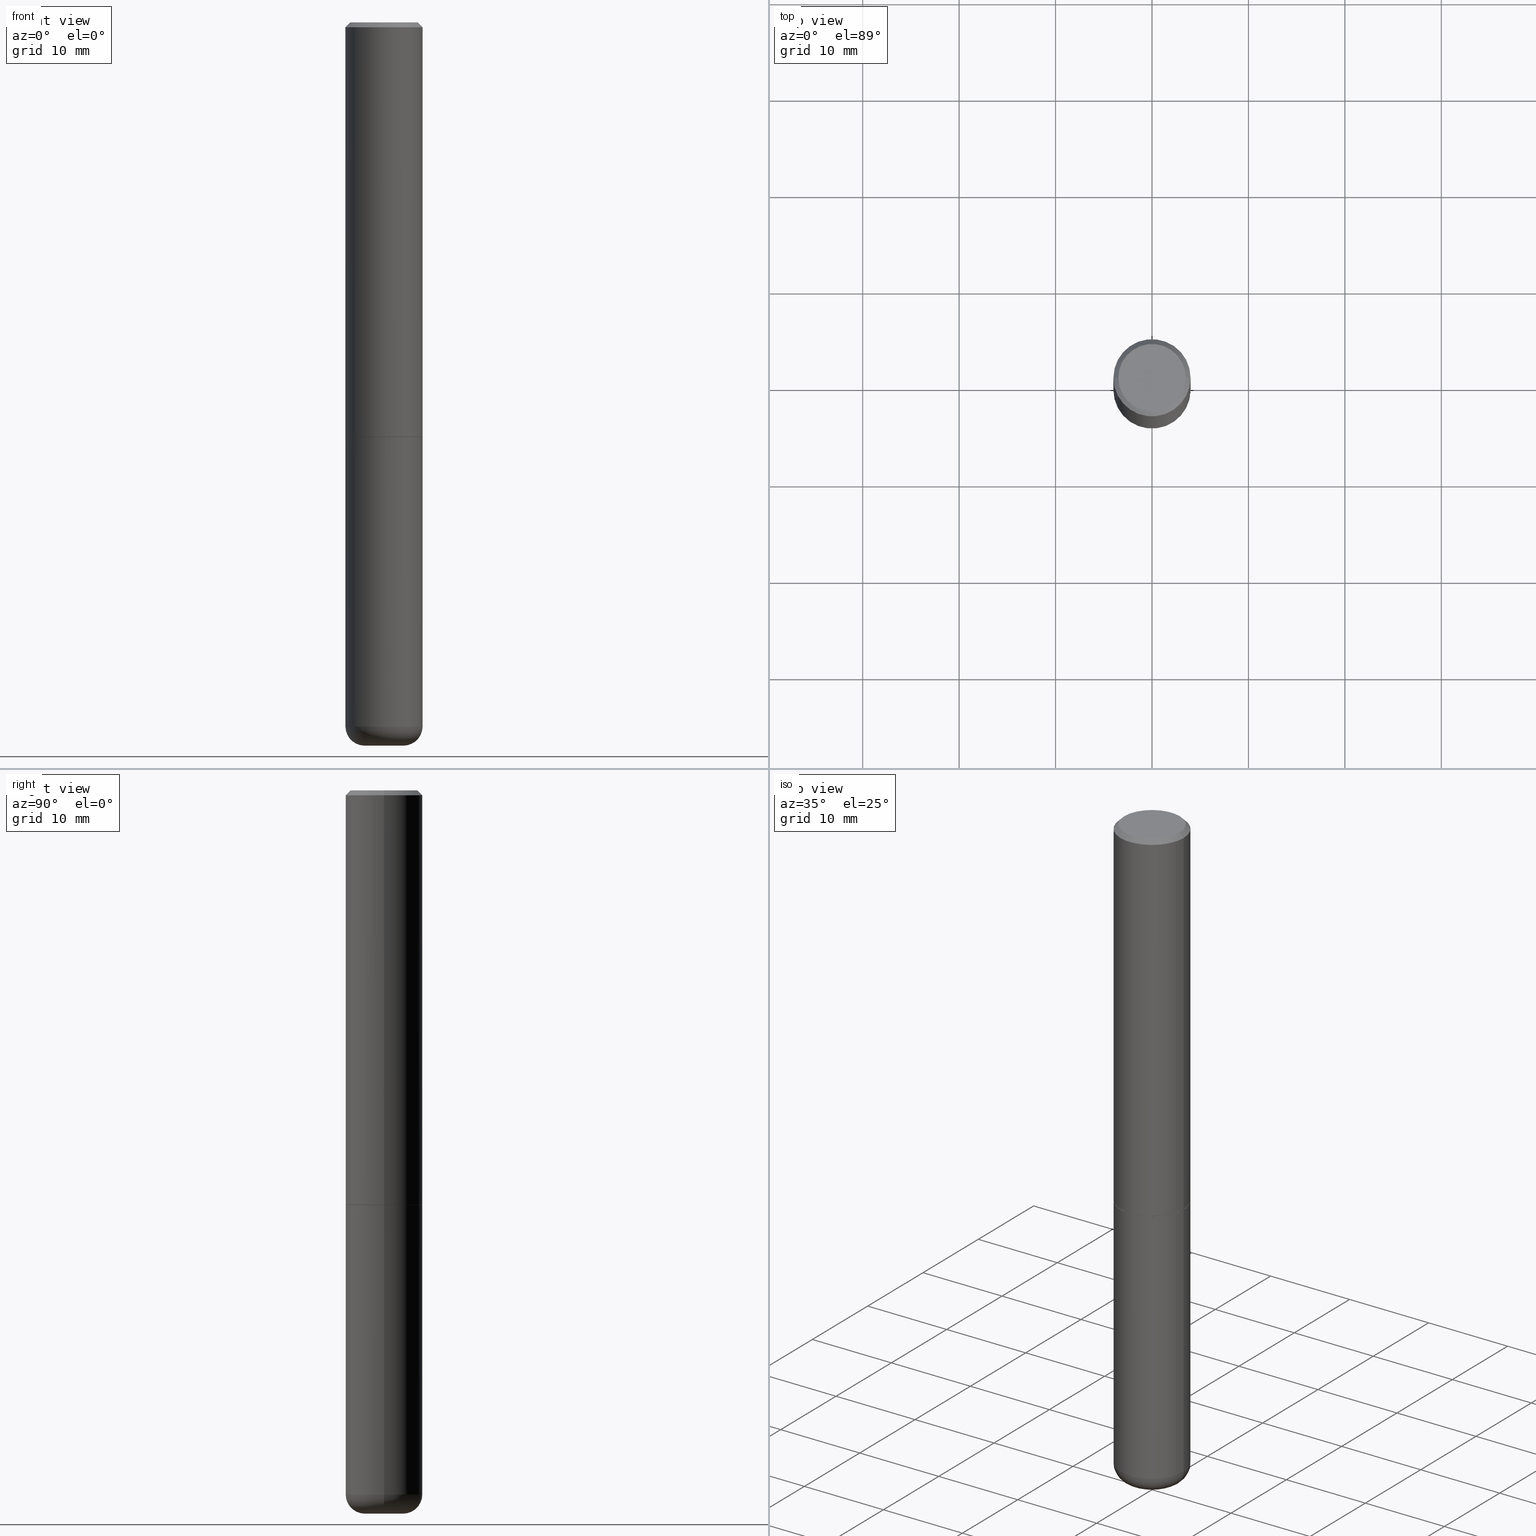
[diagram: canonical four-view strip — front | top / right | iso, engineering-drawing reading convention]
A machine part, canonical four-view strip (front | top / right | iso — engineering-drawing reading convention). The complete STEP part file that produces these views, byte-faithful:
ISO-10303-21;
HEADER;
FILE_DESCRIPTION (( 'STEP AP203' ),
    '1' );
FILE_NAME ('44853.STEP',
    '2024-03-04T10:37:59',
    ( '' ),
    ( '' ),
    'SwSTEP 2.0',
    'SolidWorks 2023',
    '' );
FILE_SCHEMA (( 'CONFIG_CONTROL_DESIGN' ));
ENDSEC;

DATA;
#1 = FACE_OUTER_BOUND ( 'NONE', #197, .T. ) ;
#2 = ORIENTED_EDGE ( 'NONE', *, *, #159, .T. ) ;
#3 = EDGE_CURVE ( 'NONE', #282, #162, #89, .T. ) ;
#4 = PERSON_AND_ORGANIZATION ( #180, #80 ) ;
#5 = AXIS2_PLACEMENT_3D ( 'NONE', #192, #250, #144 ) ;
#6 =( GEOMETRIC_REPRESENTATION_CONTEXT ( 3 ) GLOBAL_UNCERTAINTY_ASSIGNED_CONTEXT ( ( #248 ) ) GLOBAL_UNIT_ASSIGNED_CONTEXT ( ( #44, #297, #141 ) ) REPRESENTATION_CONTEXT ( 'NONE', 'WORKASPACE' ) );
#7 = LINE ( 'NONE', #111, #352 ) ;
#8 = ORIENTED_EDGE ( 'NONE', *, *, #337, .T. ) ;
#9 = FACE_OUTER_BOUND ( 'NONE', #244, .T. ) ;
#10 = DIRECTION ( 'NONE',  ( 1.000000000000000000, -6.982962677686267499E-15, 0.000000000000000000 ) ) ;
#11 = CARTESIAN_POINT ( 'NONE',  ( 4.140178688871434900E-29, -5.911077906661444587E-15, -1.692999999999999616 ) ) ;
#12 = EDGE_CURVE ( 'NONE', #384, #380, #241, .T. ) ;
#13 = AXIS2_PLACEMENT_3D ( 'NONE', #98, #261, #59 ) ;
#14 = PLANE ( 'NONE',  #71 ) ;
#15 = EDGE_LOOP ( 'NONE', ( #31, #393, #85, #16 ) ) ;
#16 = ORIENTED_EDGE ( 'NONE', *, *, #243, .F. ) ;
#17 = CARTESIAN_POINT ( 'NONE',  ( 4.890937612370281041E-31, -6.982962677686302702E-17, -0.02000000000000003511 ) ) ;
#18 = ADVANCED_FACE ( 'NONE', ( #413 ), #93, .T. ) ;
#19 = CALENDAR_DATE ( 2024, 4, 3 ) ;
#20 = DIRECTION ( 'NONE',  ( 1.000000000000000000, -6.982962677686267499E-15, 4.874794762600759889E-29 ) ) ;
#21 = DIRECTION ( 'NONE',  ( -2.445468806185136597E-29, 3.491481338843145583E-15, 1.000000000000000000 ) ) ;
#22 = ORIENTED_EDGE ( 'NONE', *, *, #181, .F. ) ;
#23 = COORDINATED_UNIVERSAL_TIME_OFFSET ( 5, 0, .BEHIND. ) ;
#24 = DESIGN_CONTEXT ( 'detailed design', #183, 'design' ) ;
#25 = CARTESIAN_POINT ( 'NONE',  ( 7.028521895856700897E-29, -1.003486651596908519E-14, -2.874099999999999877 ) ) ;
#26 = VERTEX_POINT ( 'NONE', #196 ) ;
#27 = DIRECTION ( 'NONE',  ( 1.000000000000000000, -6.982962677686261977E-15, 0.000000000000000000 ) ) ;
#28 = AXIS2_PLACEMENT_3D ( 'NONE', #238, #114, #121 ) ;
#29 = APPROVAL_PERSON_ORGANIZATION ( #4, #316, #32 ) ;
#30 = CARTESIAN_POINT ( 'NONE',  ( -0.1565000000000000002, -4.793780070848664800E-15, -1.692999999999999616 ) ) ;
#31 = ORIENTED_EDGE ( 'NONE', *, *, #131, .F. ) ;
#32 = APPROVAL_ROLE ( '' ) ;
#33 = CARTESIAN_POINT ( 'NONE',  ( 0.1575000000000000844, -1.099816621735587677E-15, 7.679978421878603638E-30 ) ) ;
#34 = ORIENTED_EDGE ( 'NONE', *, *, #264, .T. ) ;
#35 = AXIS2_PLACEMENT_3D ( 'NONE', #301, #396, #75 ) ;
#36 = PRODUCT ( '44853', '44853', '', ( #105 ) ) ;
#37 = PRODUCT_DEFINITION ( 'UNKNOWN', '', #72, #24 ) ;
#38 = CARTESIAN_POINT ( 'NONE',  ( 4.890937612370281041E-31, -6.982962677686302702E-17, -0.02000000000000003511 ) ) ;
#39 = CARTESIAN_POINT ( 'NONE',  ( -0.07880000000000000893, -9.332750064352005228E-15, -2.952799999999999869 ) ) ;
#40 = CIRCLE ( 'NONE', #247, 0.1575000000000000289 ) ;
#41 = CARTESIAN_POINT ( 'NONE',  ( 0.1565000000000000002, -7.003911565719345264E-15, -1.692999999999999616 ) ) ;
#42 = CARTESIAN_POINT ( 'NONE',  ( 4.137733220065250418E-29, -5.907586425322600791E-15, -1.691999999999999504 ) ) ;
#43 = ADVANCED_FACE ( 'NONE', ( #1 ), #83, .T. ) ;
#44 =( CONVERSION_BASED_UNIT ( 'INCH', #209 ) LENGTH_UNIT ( ) NAMED_UNIT ( #73 ) );
#45 = CC_DESIGN_PERSON_AND_ORGANIZATION_ASSIGNMENT ( #195, #186, ( #72 ) ) ;
#46 = AXIS2_PLACEMENT_3D ( 'NONE', #388, #367, #275 ) ;
#47 = CC_DESIGN_PERSON_AND_ORGANIZATION_ASSIGNMENT ( #284, #129, ( #36 ) ) ;
#48 = EDGE_LOOP ( 'NONE', ( #128, #91 ) ) ;
#49 = VECTOR ( 'NONE', #113, 39.37007874015748143 ) ;
#50 = LOCAL_TIME ( 5, 37, 59.00000000000000000, #166 ) ;
#51 = APPROVAL_STATUS ( 'not_yet_approved' ) ;
#52 = DIRECTION ( 'NONE',  ( 1.000000000000000000, -6.982962677686265922E-15, 0.000000000000000000 ) ) ;
#53 = EDGE_LOOP ( 'NONE', ( #153, #346, #167, #324 ) ) ;
#54 = FACE_OUTER_BOUND ( 'NONE', #322, .T. ) ;
#55 = CARTESIAN_POINT ( 'NONE',  ( 4.890937612370281041E-31, -6.982962677686302702E-17, -0.02000000000000003511 ) ) ;
#56 = ORIENTED_EDGE ( 'NONE', *, *, #302, .T. ) ;
#57 = CYLINDRICAL_SURFACE ( 'NONE', #149, 0.1575000000000000844 ) ;
#58 = PLANE ( 'NONE',  #334 ) ;
#59 = DIRECTION ( 'NONE',  ( 1.000000000000000000, -6.982962677686263555E-15, 4.883557194083111780E-29 ) ) ;
#60 = CONICAL_SURFACE ( 'NONE', #397, 0.1565000000000000002, 0.7853981633975165577 ) ;
#61 = CARTESIAN_POINT ( 'NONE',  ( 7.220980290903470182E-29, -1.030964609733603853E-14, -2.952799999999999869 ) ) ;
#62 = ORIENTED_EDGE ( 'NONE', *, *, #78, .T. ) ;
#63 = DIRECTION ( 'NONE',  ( -2.445468806185136597E-29, 3.491481338843145583E-15, 1.000000000000000000 ) ) ;
#64 = CARTESIAN_POINT ( 'NONE',  ( 4.140178688871434900E-29, -5.911077906661444587E-15, -1.692999999999999616 ) ) ;
#65 = PERSON_AND_ORGANIZATION ( #180, #80 ) ;
#66 = DIRECTION ( 'NONE',  ( 2.438088387897960049E-29, -3.491481338843145188E-15, -1.000000000000000000 ) ) ;
#67 = VERTEX_POINT ( 'NONE', #136 ) ;
#68 = DIRECTION ( 'NONE',  ( -2.445468806185136877E-29, 3.491481338843145188E-15, 1.000000000000000000 ) ) ;
#69 = CARTESIAN_POINT ( 'NONE',  ( 0.000000000000000000, 0.000000000000000000, 0.000000000000000000 ) ) ;
#70 = EDGE_CURVE ( 'NONE', #162, #152, #349, .T. ) ;
#71 = AXIS2_PLACEMENT_3D ( 'NONE', #109, #392, #148 ) ;
#72 = PRODUCT_DEFINITION_FORMATION_WITH_SPECIFIED_SOURCE ( 'ANY', '', #36, .NOT_KNOWN. ) ;
#73 = DIMENSIONAL_EXPONENTS ( 1.000000000000000000, 0.000000000000000000, 0.000000000000000000, 0.000000000000000000, 0.000000000000000000, 0.000000000000000000, 0.000000000000000000 ) ;
#74 = ORIENTED_EDGE ( 'NONE', *, *, #181, .T. ) ;
#75 = DIRECTION ( 'NONE',  ( 1.000000000000000000, -6.982962677686267499E-15, 4.874794762600759889E-29 ) ) ;
#76 = CARTESIAN_POINT ( 'NONE',  ( -0.1565000000000000002, -4.799078525196887991E-15, -1.692999999999999616 ) ) ;
#77 = CYLINDRICAL_SURFACE ( 'NONE', #371, 0.1575000000000000844 ) ;
#78 = EDGE_CURVE ( 'NONE', #343, #411, #125, .T. ) ;
#79 = CIRCLE ( 'NONE', #272, 0.1575000000000000011 ) ;
#80 = ORGANIZATION ( 'UNSPECIFIED', 'UNSPECIFIED', '' ) ;
#81 = EDGE_CURVE ( 'NONE', #162, #282, #119, .T. ) ;
#82 = PLANE ( 'NONE',  #147 ) ;
#83 = CONICAL_SURFACE ( 'NONE', #315, 0.1565000000000000002, 0.7853981633975165577 ) ;
#84 = AXIS2_PLACEMENT_3D ( 'NONE', #361, #331, #259 ) ;
#85 = ORIENTED_EDGE ( 'NONE', *, *, #309, .T. ) ;
#86 = DIRECTION ( 'NONE',  ( 1.000000000000000000, -6.982962677686267499E-15, 0.000000000000000000 ) ) ;
#87 = DATE_TIME_ROLE ( 'creation_date' ) ;
#88 = CARTESIAN_POINT ( 'NONE',  ( 4.137733220065250418E-29, -5.907586425322600791E-15, -1.691999999999999504 ) ) ;
#89 = CIRCLE ( 'NONE', #280, 0.1575000000000001954 ) ;
#90 = CIRCLE ( 'NONE', #378, 0.1565000000000000002 ) ;
#91 = ORIENTED_EDGE ( 'NONE', *, *, #347, .F. ) ;
#92 = APPROVAL_DATE_TIME ( #95, #210 ) ;
#93 = PLANE ( 'NONE',  #213 ) ;
#94 = ORIENTED_EDGE ( 'NONE', *, *, #237, .F. ) ;
#95 = DATE_AND_TIME ( #317, #50 ) ;
#96 = CARTESIAN_POINT ( 'NONE',  ( 0.07880000000000000893, -1.085990355633771696E-14, -2.952799999999999869 ) ) ;
#97 = ORIENTED_EDGE ( 'NONE', *, *, #81, .T. ) ;
#98 = CARTESIAN_POINT ( 'NONE',  ( 7.028521895856700897E-29, -1.003486651596908519E-14, -2.874099999999999877 ) ) ;
#99 = ADVANCED_FACE ( 'NONE', ( #279 ), #204, .T. ) ;
#100 = APPROVAL_ROLE ( '' ) ;
#101 = CARTESIAN_POINT ( 'NONE',  ( -0.1375000000000000944, 9.950721815702931246E-16, -8.537024980201506648E-17 ) ) ;
#102 = ORIENTED_EDGE ( 'NONE', *, *, #177, .T. ) ;
#103 = CIRCLE ( 'NONE', #156, 0.1575000000000000289 ) ;
#104 = CC_DESIGN_APPROVAL ( #210, ( #178 ) ) ;
#105 = MECHANICAL_CONTEXT ( 'NONE', #262, 'mechanical' ) ;
#106 = CARTESIAN_POINT ( 'NONE',  ( 4.140178688871434900E-29, -5.911077906661444587E-15, -1.692999999999999616 ) ) ;
#107 = VERTEX_POINT ( 'NONE', #96 ) ;
#108 = FACE_OUTER_BOUND ( 'NONE', #258, .T. ) ;
#109 = CARTESIAN_POINT ( 'NONE',  ( 9.601573681818622643E-16, 0.1375000000000000944, -5.227638089919369768E-16 ) ) ;
#110 = TOROIDAL_SURFACE ( 'NONE', #161, 0.07879999999999999505, 0.07869999999999995055 ) ;
#111 = CARTESIAN_POINT ( 'NONE',  ( -0.1575000000000000844, 1.119104808822158392E-15, -7.747322767151481189E-30 ) ) ;
#112 = CARTESIAN_POINT ( 'NONE',  ( 0.1575000000000001954, -7.007403047058189060E-15, -1.691999999999999504 ) ) ;
#113 = DIRECTION ( 'NONE',  ( -2.445468806185136877E-29, 3.491481338843145188E-15, 1.000000000000000000 ) ) ;
#114 = DIRECTION ( 'NONE',  ( -2.445468806185136597E-29, 3.491481338843145583E-15, 1.000000000000000000 ) ) ;
#115 = FACE_OUTER_BOUND ( 'NONE', #222, .T. ) ;
#116 = CIRCLE ( 'NONE', #407, 0.1575000000000000011 ) ;
#117 = ADVANCED_FACE ( 'NONE', ( #285 ), #58, .F. ) ;
#118 = DIRECTION ( 'NONE',  ( 2.438088387897960049E-29, -3.491481338843145188E-15, -1.000000000000000000 ) ) ;
#119 = CIRCLE ( 'NONE', #182, 0.1575000000000001954 ) ;
#120 = CARTESIAN_POINT ( 'NONE',  ( 0.1575000000000000289, -1.150358061425879472E-15, -0.02000000000000003511 ) ) ;
#121 = DIRECTION ( 'NONE',  ( 1.000000000000000000, -6.982962677686277755E-15, 0.000000000000000000 ) ) ;
#122 = VECTOR ( 'NONE', #176, 39.37007874015748143 ) ;
#123 = APPROVAL ( #51, 'UNSPECIFIED' ) ;
#124 = CALENDAR_DATE ( 2024, 4, 3 ) ;
#125 = LINE ( 'NONE', #408, #299 ) ;
#126 = CLOSED_SHELL ( 'NONE', ( #218, #208, #293, #99, #276, #43, #117, #184 ) ) ;
#127 = TOROIDAL_SURFACE ( 'NONE', #13, 0.07879999999999999505, 0.07869999999999995055 ) ;
#128 = ORIENTED_EDGE ( 'NONE', *, *, #337, .F. ) ;
#129 = PERSON_AND_ORGANIZATION_ROLE ( 'design_owner' ) ;
#130 = DIRECTION ( 'NONE',  ( -0.7071067811865471286, 2.468850131082252722E-15, -0.7071067811865479058 ) ) ;
#131 = EDGE_CURVE ( 'NONE', #380, #26, #332, .T. ) ;
#132 = VERTEX_POINT ( 'NONE', #39 ) ;
#133 = CARTESIAN_POINT ( 'NONE',  ( 0.000000000000000000, 0.000000000000000000, 0.000000000000000000 ) ) ;
#134 = ORIENTED_EDGE ( 'NONE', *, *, #391, .F. ) ;
#135 = MANIFOLD_SOLID_BREP ( 'Body-Move/Copy2[1]', #304 ) ;
#136 = CARTESIAN_POINT ( 'NONE',  ( 0.1575000000000000011, -7.010894528397031278E-15, -1.692999999999999616 ) ) ;
#137 = ORIENTED_EDGE ( 'NONE', *, *, #201, .T. ) ;
#138 = DIRECTION ( 'NONE',  ( 1.000000000000000000, -6.982962677686267499E-15, 4.876176775795936353E-29 ) ) ;
#139 = CONICAL_SURFACE ( 'NONE', #5, 0.1575000000000000289, 0.7853981633974477239 ) ;
#140 = EDGE_CURVE ( 'NONE', #107, #384, #172, .T. ) ;
#141 =( NAMED_UNIT ( * ) SI_UNIT ( $, .STERADIAN. ) SOLID_ANGLE_UNIT ( ) );
#142 = DIRECTION ( 'NONE',  ( -0.7071067811865957564, 7.493145998870527710E-15, 0.7071067811864992780 ) ) ;
#143 = ORIENTED_EDGE ( 'NONE', *, *, #78, .F. ) ;
#144 = DIRECTION ( 'NONE',  ( -1.000000000000000000, 6.982962677686267499E-15, 0.000000000000000000 ) ) ;
#145 = LINE ( 'NONE', #263, #122 ) ;
#146 = CARTESIAN_POINT ( 'NONE',  ( 0.1575000000000000289, -1.150358061425879472E-15, -0.02000000000000003511 ) ) ;
#147 = AXIS2_PLACEMENT_3D ( 'NONE', #64, #118, #336 ) ;
#148 = DIRECTION ( 'NONE',  ( -1.000000000000000000, 6.982962677686265922E-15, -4.876176775795935793E-29 ) ) ;
#149 = AXIS2_PLACEMENT_3D ( 'NONE', #69, #385, #138 ) ;
#150 = CARTESIAN_POINT ( 'NONE',  ( 4.140178688871434900E-29, -5.911077906661444587E-15, -1.692999999999999616 ) ) ;
#151 = LOCAL_TIME ( 5, 37, 59.00000000000000000, #23 ) ;
#152 = VERTEX_POINT ( 'NONE', #146 ) ;
#153 = ORIENTED_EDGE ( 'NONE', *, *, #271, .F. ) ;
#154 = DIRECTION ( 'NONE',  ( -2.445468806185136597E-29, 3.491481338843145583E-15, 1.000000000000000000 ) ) ;
#155 = CARTESIAN_POINT ( 'NONE',  ( 2.087702828670439561E-45, -2.980686340760894291E-31, -8.537024980200822558E-17 ) ) ;
#156 = AXIS2_PLACEMENT_3D ( 'NONE', #17, #154, #86 ) ;
#157 = PERSON_AND_ORGANIZATION_ROLE ( 'classification_officer' ) ;
#158 = ORIENTED_EDGE ( 'NONE', *, *, #271, .T. ) ;
#159 = EDGE_CURVE ( 'NONE', #282, #411, #7, .T. ) ;
#160 = SECURITY_CLASSIFICATION_LEVEL ( 'unclassified' ) ;
#161 = AXIS2_PLACEMENT_3D ( 'NONE', #25, #63, #198 ) ;
#162 = VERTEX_POINT ( 'NONE', #112 ) ;
#163 = CARTESIAN_POINT ( 'NONE',  ( 0.1575000000000000011, -1.099816621735586889E-15, 7.679978421878598033E-30 ) ) ;
#164 = ORIENTED_EDGE ( 'NONE', *, *, #70, .T. ) ;
#165 = FACE_OUTER_BOUND ( 'NONE', #169, .T. ) ;
#166 = COORDINATED_UNIVERSAL_TIME_OFFSET ( 5, 0, .BEHIND. ) ;
#167 = ORIENTED_EDGE ( 'NONE', *, *, #140, .T. ) ;
#168 = DATE_AND_TIME ( #19, #329 ) ;
#169 = EDGE_LOOP ( 'NONE', ( #289, #188, #194, #191 ) ) ;
#170 = VECTOR ( 'NONE', #68, 39.37007874015748143 ) ;
#171 = CC_DESIGN_DATE_AND_TIME_ASSIGNMENT ( #216, #87, ( #37 ) ) ;
#172 = CIRCLE ( 'NONE', #84, 0.07869999999999996443 ) ;
#173 = DIRECTION ( 'NONE',  ( 1.000000000000000000, -6.982962677686267499E-15, 4.876176775795936353E-29 ) ) ;
#174 = DIRECTION ( 'NONE',  ( 1.000000000000000000, -6.982962677686268288E-15, 0.000000000000000000 ) ) ;
#175 = CARTESIAN_POINT ( 'NONE',  ( 0.000000000000000000, 0.000000000000000000, 0.000000000000000000 ) ) ;
#176 = DIRECTION ( 'NONE',  ( 0.7071067811865957564, -2.468850131082761932E-15, 0.7071067811864992780 ) ) ;
#177 = EDGE_CURVE ( 'NONE', #411, #152, #40, .T. ) ;
#178 = SECURITY_CLASSIFICATION ( '', '', #160 ) ;
#179 = CYLINDRICAL_SURFACE ( 'NONE', #305, 0.1575000000000000011 ) ;
#180 = PERSON ( 'UNSPECIFIED', 'UNSPECIFIED', 'UNSPECIFIED', ('UNSPECIFIED'), ('UNSPECIFIED'), ('UNSPECIFIED') ) ;
#181 = EDGE_CURVE ( 'NONE', #339, #282, #368, .T. ) ;
#182 = AXIS2_PLACEMENT_3D ( 'NONE', #88, #256, #311 ) ;
#183 = APPLICATION_CONTEXT ( 'configuration controlled 3d designs of mechanical parts and assemblies' ) ;
#184 = ADVANCED_FACE ( 'NONE', ( #108 ), #14, .F. ) ;
#185 = CC_DESIGN_APPROVAL ( #123, ( #72 ) ) ;
#186 = PERSON_AND_ORGANIZATION_ROLE ( 'creator' ) ;
#187 = DIRECTION ( 'NONE',  ( -2.445468806185136597E-29, 3.491481338843145583E-15, 1.000000000000000000 ) ) ;
#188 = ORIENTED_EDGE ( 'NONE', *, *, #131, .T. ) ;
#189 = APPLICATION_PROTOCOL_DEFINITION ( 'international standard', 'config_control_design', 1994, #183 ) ;
#190 = DIRECTION ( 'NONE',  ( 2.445468806185136597E-29, -3.491481338843145583E-15, -1.000000000000000000 ) ) ;
#191 = ORIENTED_EDGE ( 'NONE', *, *, #309, .F. ) ;
#192 = CARTESIAN_POINT ( 'NONE',  ( 4.890937612370281041E-31, -6.982962677686302702E-17, -0.02000000000000003511 ) ) ;
#193 = DIRECTION ( 'NONE',  ( 1.000000000000000000, -6.982962677686267499E-15, 0.000000000000000000 ) ) ;
#194 = ORIENTED_EDGE ( 'NONE', *, *, #302, .F. ) ;
#195 = PERSON_AND_ORGANIZATION ( #180, #80 ) ;
#196 = CARTESIAN_POINT ( 'NONE',  ( -0.1575000000000000011, -6.853867402493107284E-15, -1.692999999999999616 ) ) ;
#197 = EDGE_LOOP ( 'NONE', ( #22, #253, #254, #353 ) ) ;
#198 = DIRECTION ( 'NONE',  ( 1.000000000000000000, -6.982962677686263555E-15, 4.883557194083111780E-29 ) ) ;
#199 = SHAPE_DEFINITION_REPRESENTATION ( #359, #366 ) ;
#200 = DIRECTION ( 'NONE',  ( -2.445468806185136597E-29, 3.491481338843145583E-15, 1.000000000000000000 ) ) ;
#201 = EDGE_CURVE ( 'NONE', #343, #215, #401, .T. ) ;
#202 = EDGE_LOOP ( 'NONE', ( #56, #212 ) ) ;
#203 = DIRECTION ( 'NONE',  ( -2.445468806185136597E-29, 3.491481338843145583E-15, 1.000000000000000000 ) ) ;
#204 = CONICAL_SURFACE ( 'NONE', #308, 0.1575000000000000289, 0.7853981633974477239 ) ;
#205 = CARTESIAN_POINT ( 'NONE',  ( -0.1575000000000000011, 1.119104808822157801E-15, -7.747322767151475583E-30 ) ) ;
#206 = ADVANCED_FACE ( 'NONE', ( #369 ), #179, .T. ) ;
#207 = DIRECTION ( 'NONE',  ( -2.445468806185136597E-29, 3.491481338843145583E-15, 1.000000000000000000 ) ) ;
#208 = ADVANCED_FACE ( 'NONE', ( #268 ), #77, .T. ) ;
#209 = LENGTH_MEASURE_WITH_UNIT ( LENGTH_MEASURE( 0.02539999999999999897 ), #240 );
#210 = APPROVAL ( #345, 'UNSPECIFIED' ) ;
#211 = DIRECTION ( 'NONE',  ( -2.445468806185136597E-29, 3.491481338843145583E-15, 1.000000000000000000 ) ) ;
#212 = ORIENTED_EDGE ( 'NONE', *, *, #243, .T. ) ;
#213 = AXIS2_PLACEMENT_3D ( 'NONE', #61, #66, #227 ) ;
#214 = CIRCLE ( 'NONE', #28, 0.07880000000000000893 ) ;
#215 = VERTEX_POINT ( 'NONE', #294 ) ;
#216 = DATE_AND_TIME ( #124, #151 ) ;
#217 = CIRCLE ( 'NONE', #269, 0.07880000000000000893 ) ;
#218 = ADVANCED_FACE ( 'NONE', ( #9 ), #60, .T. ) ;
#219 = CARTESIAN_POINT ( 'NONE',  ( 4.140178688871434900E-29, -5.911077906661444587E-15, -1.692999999999999616 ) ) ;
#220 = ORIENTED_EDGE ( 'NONE', *, *, #372, .T. ) ;
#221 = APPROVAL_STATUS ( 'not_yet_approved' ) ;
#222 = EDGE_LOOP ( 'NONE', ( #220, #158, #260, #249 ) ) ;
#223 = COORDINATED_UNIVERSAL_TIME_OFFSET ( 5, 0, .BEHIND. ) ;
#224 = ORIENTED_EDGE ( 'NONE', *, *, #177, .F. ) ;
#225 = FACE_OUTER_BOUND ( 'NONE', #53, .T. ) ;
#226 = APPROVAL_DATE_TIME ( #251, #123 ) ;
#227 = DIRECTION ( 'NONE',  ( -1.000000000000000000, 6.982962677686265922E-15, -4.876176775795935793E-29 ) ) ;
#228 = ORIENTED_EDGE ( 'NONE', *, *, #264, .F. ) ;
#229 = DIRECTION ( 'NONE',  ( 0.7071067811865471286, -7.319954787623254468E-15, -0.7071067811865479058 ) ) ;
#230 = DIRECTION ( 'NONE',  ( 1.000000000000000000, -6.982962677686267499E-15, 0.000000000000000000 ) ) ;
#231 = DIRECTION ( 'NONE',  ( 1.000000000000000000, -6.982962677686267499E-15, 0.000000000000000000 ) ) ;
#232 = AXIS2_PLACEMENT_3D ( 'NONE', #363, #381, #27 ) ;
#233 = CC_DESIGN_APPROVAL ( #316, ( #37 ) ) ;
#234 = DIRECTION ( 'NONE',  ( -2.445468806185136597E-29, 3.491481338843145583E-15, 1.000000000000000000 ) ) ;
#235 = PRODUCT_RELATED_PRODUCT_CATEGORY ( 'detail', '', ( #36 ) ) ;
#236 = APPROVAL_PERSON_ORGANIZATION ( #65, #210, #379 ) ;
#237 = EDGE_CURVE ( 'NONE', #389, #162, #145, .T. ) ;
#238 = CARTESIAN_POINT ( 'NONE',  ( 7.220980290903470182E-29, -1.030964609733603853E-14, -2.952799999999999869 ) ) ;
#239 = CC_DESIGN_PERSON_AND_ORGANIZATION_ASSIGNMENT ( #418, #323, ( #37 ) ) ;
#240 =( LENGTH_UNIT ( ) NAMED_UNIT ( * ) SI_UNIT ( $, .METRE. ) );
#241 = CIRCLE ( 'NONE', #338, 0.1575000000000000011 ) ;
#242 = LOCAL_TIME ( 5, 37, 59.00000000000000000, #255 ) ;
#243 = EDGE_CURVE ( 'NONE', #26, #67, #79, .T. ) ;
#244 = EDGE_LOOP ( 'NONE', ( #8, #74, #313, #94 ) ) ;
#245 = DIRECTION ( 'NONE',  ( 7.105427357601001859E-15, 1.000000000000000000, -3.491481338843145583E-15 ) ) ;
#246 = APPROVAL_DATE_TIME ( #168, #316 ) ;
#247 = AXIS2_PLACEMENT_3D ( 'NONE', #38, #234, #230 ) ;
#248 = UNCERTAINTY_MEASURE_WITH_UNIT (LENGTH_MEASURE( 1.000000000000000082E-05 ), #44, 'distance_accuracy_value', 'NONE');
#249 = ORIENTED_EDGE ( 'NONE', *, *, #140, .F. ) ;
#250 = DIRECTION ( 'NONE',  ( 2.445468806185136597E-29, -3.491481338843145583E-15, -1.000000000000000000 ) ) ;
#251 = DATE_AND_TIME ( #351, #273 ) ;
#252 = DIRECTION ( 'NONE',  ( -1.000000000000000000, 6.982962677686267499E-15, 0.000000000000000000 ) ) ;
#253 = ORIENTED_EDGE ( 'NONE', *, *, #347, .T. ) ;
#254 = ORIENTED_EDGE ( 'NONE', *, *, #237, .T. ) ;
#255 = COORDINATED_UNIVERSAL_TIME_OFFSET ( 5, 0, .BEHIND. ) ;
#256 = DIRECTION ( 'NONE',  ( -2.445468806185136597E-29, 3.491481338843145583E-15, 1.000000000000000000 ) ) ;
#257 = VECTOR ( 'NONE', #142, 39.37007874015748143 ) ;
#258 = EDGE_LOOP ( 'NONE', ( #137, #312 ) ) ;
#259 = DIRECTION ( 'NONE',  ( 1.000000000000000000, -6.982962677686273021E-15, 0.000000000000000000 ) ) ;
#260 = ORIENTED_EDGE ( 'NONE', *, *, #12, .F. ) ;
#261 = DIRECTION ( 'NONE',  ( -2.445468806185136597E-29, 3.491481338843145583E-15, 1.000000000000000000 ) ) ;
#262 = APPLICATION_CONTEXT ( 'configuration controlled 3d designs of mechanical parts and assemblies' ) ;
#263 = CARTESIAN_POINT ( 'NONE',  ( 0.1565000000000000002, -7.003911565719345264E-15, -1.692999999999999616 ) ) ;
#264 = EDGE_CURVE ( 'NONE', #152, #411, #103, .T. ) ;
#265 = DIRECTION ( 'NONE',  ( -2.445468806185136597E-29, 3.491481338843145583E-15, 1.000000000000000000 ) ) ;
#266 = VECTOR ( 'NONE', #355, 39.37007874015748143 ) ;
#267 = CIRCLE ( 'NONE', #318, 0.1375000000000000944 ) ;
#268 = FACE_OUTER_BOUND ( 'NONE', #405, .T. ) ;
#269 = AXIS2_PLACEMENT_3D ( 'NONE', #283, #203, #325 ) ;
#270 = CC_DESIGN_SECURITY_CLASSIFICATION ( #178, ( #72 ) ) ;
#271 = EDGE_CURVE ( 'NONE', #132, #380, #412, .T. ) ;
#272 = AXIS2_PLACEMENT_3D ( 'NONE', #364, #211, #404 ) ;
#273 = LOCAL_TIME ( 5, 37, 59.00000000000000000, #223 ) ;
#274 = DIRECTION ( 'NONE',  ( -2.445468806185136597E-29, 3.491481338843145583E-15, 1.000000000000000000 ) ) ;
#275 = DIRECTION ( 'NONE',  ( 1.000000000000000000, -6.982962677686265922E-15, 4.876176775795935232E-29 ) ) ;
#276 = ADVANCED_FACE ( 'NONE', ( #54 ), #57, .T. ) ;
#277 = CARTESIAN_POINT ( 'NONE',  ( -0.07879999999999999505, -9.474958840190126376E-15, -2.874099999999999877 ) ) ;
#278 = DATE_AND_TIME ( #310, #242 ) ;
#279 = FACE_OUTER_BOUND ( 'NONE', #416, .T. ) ;
#280 = AXIS2_PLACEMENT_3D ( 'NONE', #42, #200, #52 ) ;
#281 = AXIS2_PLACEMENT_3D ( 'NONE', #150, #409, #10 ) ;
#282 = VERTEX_POINT ( 'NONE', #330 ) ;
#283 = CARTESIAN_POINT ( 'NONE',  ( 7.220980290903470182E-29, -1.030964609733603853E-14, -2.952799999999999869 ) ) ;
#284 = PERSON_AND_ORGANIZATION ( #180, #80 ) ;
#285 = FACE_OUTER_BOUND ( 'NONE', #48, .T. ) ;
#286 = DIRECTION ( 'NONE',  ( 1.000000000000000000, -6.982962677686267499E-15, 0.000000000000000000 ) ) ;
#287 = COORDINATED_UNIVERSAL_TIME_OFFSET ( 5, 0, .BEHIND. ) ;
#288 = CARTESIAN_POINT ( 'NONE',  ( 7.028521895856700897E-29, -1.003486651596908519E-14, -2.874099999999999877 ) ) ;
#289 = ORIENTED_EDGE ( 'NONE', *, *, #12, .T. ) ;
#290 = DIRECTION ( 'NONE',  ( 1.000000000000000000, 0.000000000000000000, 0.000000000000000000 ) ) ;
#291 = CARTESIAN_POINT ( 'NONE',  ( 0.000000000000000000, 0.000000000000000000, 0.000000000000000000 ) ) ;
#292 = ORIENTED_EDGE ( 'NONE', *, *, #201, .F. ) ;
#293 = ADVANCED_FACE ( 'NONE', ( #390 ), #139, .T. ) ;
#294 = CARTESIAN_POINT ( 'NONE',  ( 0.1375000000000000944, -1.046838268059733083E-15, -8.537024980200119978E-17 ) ) ;
#295 = LINE ( 'NONE', #120, #375 ) ;
#296 = DIRECTION ( 'NONE',  ( -2.445468806185136877E-29, 3.491481338843145188E-15, 1.000000000000000000 ) ) ;
#297 =( NAMED_UNIT ( * ) PLANE_ANGLE_UNIT ( ) SI_UNIT ( $, .RADIAN. ) );
#298 = ORIENTED_EDGE ( 'NONE', *, *, #406, .F. ) ;
#299 = VECTOR ( 'NONE', #130, 39.37007874015748143 ) ;
#300 = APPROVAL_PERSON_ORGANIZATION ( #377, #123, #100 ) ;
#301 = CARTESIAN_POINT ( 'NONE',  ( 2.087702828670439561E-45, -2.980686340760894291E-31, -8.537024980200822558E-17 ) ) ;
#302 = EDGE_CURVE ( 'NONE', #67, #26, #116, .T. ) ;
#303 = CARTESIAN_POINT ( 'NONE',  ( -0.1574999999999999456, -8.915761707146927585E-15, -2.874099999999999877 ) ) ;
#304 = CLOSED_SHELL ( 'NONE', ( #341, #356, #398, #206, #333, #18 ) ) ;
#305 = AXIS2_PLACEMENT_3D ( 'NONE', #175, #207, #327 ) ;
#306 = EDGE_CURVE ( 'NONE', #380, #384, #402, .T. ) ;
#307 = CC_DESIGN_PERSON_AND_ORGANIZATION_ASSIGNMENT ( #382, #157, ( #178 ) ) ;
#308 = AXIS2_PLACEMENT_3D ( 'NONE', #55, #190, #252 ) ;
#309 = EDGE_CURVE ( 'NONE', #384, #67, #358, .T. ) ;
#310 = CALENDAR_DATE ( 2024, 4, 3 ) ;
#311 = DIRECTION ( 'NONE',  ( 1.000000000000000000, -6.982962677686265922E-15, 0.000000000000000000 ) ) ;
#312 = ORIENTED_EDGE ( 'NONE', *, *, #391, .T. ) ;
#313 = ORIENTED_EDGE ( 'NONE', *, *, #81, .F. ) ;
#314 = CARTESIAN_POINT ( 'NONE',  ( 4.140178688871434900E-29, -5.911077906661444587E-15, -1.692999999999999616 ) ) ;
#315 = AXIS2_PLACEMENT_3D ( 'NONE', #219, #21, #193 ) ;
#316 = APPROVAL ( #221, 'UNSPECIFIED' ) ;
#317 = CALENDAR_DATE ( 2024, 4, 3 ) ;
#318 = AXIS2_PLACEMENT_3D ( 'NONE', #155, #274, #20 ) ;
#319 = DIRECTION ( 'NONE',  ( -2.438088387897960049E-29, 3.491481338843145188E-15, 1.000000000000000000 ) ) ;
#320 = DIRECTION ( 'NONE',  ( -2.445468806185136597E-29, 3.491481338843145583E-15, 1.000000000000000000 ) ) ;
#321 = PERSON_AND_ORGANIZATION ( #180, #80 ) ;
#322 = EDGE_LOOP ( 'NONE', ( #350, #376, #164, #224 ) ) ;
#323 = PERSON_AND_ORGANIZATION_ROLE ( 'creator' ) ;
#324 = ORIENTED_EDGE ( 'NONE', *, *, #306, .F. ) ;
#325 = DIRECTION ( 'NONE',  ( 1.000000000000000000, -6.982962677686277755E-15, 0.000000000000000000 ) ) ;
#326 = EDGE_CURVE ( 'NONE', #132, #107, #217, .T. ) ;
#327 = DIRECTION ( 'NONE',  ( 1.000000000000000000, -6.982962677686265922E-15, 4.876176775795935232E-29 ) ) ;
#328 = AXIS2_PLACEMENT_3D ( 'NONE', #277, #245, #344 ) ;
#329 = LOCAL_TIME ( 5, 37, 59.00000000000000000, #287 ) ;
#330 = CARTESIAN_POINT ( 'NONE',  ( -0.1575000000000001954, -1.869603217227570102E-15, -1.691999999999999504 ) ) ;
#331 = DIRECTION ( 'NONE',  ( -6.982962677686266711E-15, -1.000000000000000000, 3.491481338843145583E-15 ) ) ;
#332 = LINE ( 'NONE', #205, #49 ) ;
#333 = ADVANCED_FACE ( 'NONE', ( #225 ), #127, .T. ) ;
#334 = AXIS2_PLACEMENT_3D ( 'NONE', #106, #319, #395 ) ;
#335 = AXIS2_PLACEMENT_3D ( 'NONE', #133, #354, #290 ) ;
#336 = DIRECTION ( 'NONE',  ( -1.000000000000000000, 6.982962677686265922E-15, -4.876176775795935793E-29 ) ) ;
#337 = EDGE_CURVE ( 'NONE', #389, #339, #90, .T. ) ;
#338 = AXIS2_PLACEMENT_3D ( 'NONE', #288, #187, #383 ) ;
#339 = VERTEX_POINT ( 'NONE', #30 ) ;
#340 = EDGE_LOOP ( 'NONE', ( #134, #357, #34, #143 ) ) ;
#341 = ADVANCED_FACE ( 'NONE', ( #165 ), #417, .T. ) ;
#342 = APPLICATION_PROTOCOL_DEFINITION ( 'international standard', 'config_control_design', 1994, #262 ) ;
#343 = VERTEX_POINT ( 'NONE', #101 ) ;
#344 = DIRECTION ( 'NONE',  ( -1.000000000000000000, 7.105427357600995548E-15, 0.000000000000000000 ) ) ;
#345 = APPROVAL_STATUS ( 'not_yet_approved' ) ;
#346 = ORIENTED_EDGE ( 'NONE', *, *, #326, .T. ) ;
#347 = EDGE_CURVE ( 'NONE', #339, #389, #365, .T. ) ;
#348 = PERSON_AND_ORGANIZATION_ROLE ( 'design_supplier' ) ;
#349 = LINE ( 'NONE', #33, #266 ) ;
#350 = ORIENTED_EDGE ( 'NONE', *, *, #159, .F. ) ;
#351 = CALENDAR_DATE ( 2024, 4, 3 ) ;
#352 = VECTOR ( 'NONE', #296, 39.37007874015748143 ) ;
#353 = ORIENTED_EDGE ( 'NONE', *, *, #3, .F. ) ;
#354 = DIRECTION ( 'NONE',  ( 0.000000000000000000, 0.000000000000000000, 1.000000000000000000 ) ) ;
#355 = DIRECTION ( 'NONE',  ( -2.445468806185136877E-29, 3.491481338843145188E-15, 1.000000000000000000 ) ) ;
#356 = ADVANCED_FACE ( 'NONE', ( #115 ), #110, .T. ) ;
#357 = ORIENTED_EDGE ( 'NONE', *, *, #406, .T. ) ;
#358 = LINE ( 'NONE', #163, #170 ) ;
#359 = PRODUCT_DEFINITION_SHAPE ( 'NONE', 'NONE',  #37 ) ;
#360 = CARTESIAN_POINT ( 'NONE',  ( -0.1575000000000000289, 1.029986994958724182E-15, -0.02000000000000003511 ) ) ;
#361 = CARTESIAN_POINT ( 'NONE',  ( 0.07879999999999999505, -1.058512397497076362E-14, -2.874099999999999877 ) ) ;
#362 = CC_DESIGN_DATE_AND_TIME_ASSIGNMENT ( #278, #410, ( #178 ) ) ;
#363 = CARTESIAN_POINT ( 'NONE',  ( 7.028521895856700897E-29, -1.003486651596908519E-14, -2.874099999999999877 ) ) ;
#364 = CARTESIAN_POINT ( 'NONE',  ( 4.140178688871434900E-29, -5.911077906661444587E-15, -1.692999999999999616 ) ) ;
#365 = CIRCLE ( 'NONE', #281, 0.1565000000000000002 ) ;
#366 = ADVANCED_BREP_SHAPE_REPRESENTATION ( '44853', ( #135, #403, #335 ), #6 ) ;
#367 = DIRECTION ( 'NONE',  ( -2.445468806185136597E-29, 3.491481338843145583E-15, 1.000000000000000000 ) ) ;
#368 = LINE ( 'NONE', #76, #257 ) ;
#369 = FACE_OUTER_BOUND ( 'NONE', #15, .T. ) ;
#370 = CARTESIAN_POINT ( 'NONE',  ( 0.1574999999999999456, -1.113468313770467030E-14, -2.874099999999999877 ) ) ;
#371 = AXIS2_PLACEMENT_3D ( 'NONE', #291, #399, #173 ) ;
#372 = EDGE_CURVE ( 'NONE', #107, #132, #214, .T. ) ;
#373 = FACE_OUTER_BOUND ( 'NONE', #202, .T. ) ;
#374 = ORIENTED_EDGE ( 'NONE', *, *, #70, .F. ) ;
#375 = VECTOR ( 'NONE', #229, 39.37007874015748143 ) ;
#376 = ORIENTED_EDGE ( 'NONE', *, *, #3, .T. ) ;
#377 = PERSON_AND_ORGANIZATION ( #180, #80 ) ;
#378 = AXIS2_PLACEMENT_3D ( 'NONE', #415, #320, #286 ) ;
#379 = APPROVAL_ROLE ( '' ) ;
#380 = VERTEX_POINT ( 'NONE', #303 ) ;
#381 = DIRECTION ( 'NONE',  ( -2.445468806185136597E-29, 3.491481338843145583E-15, 1.000000000000000000 ) ) ;
#382 = PERSON_AND_ORGANIZATION ( #180, #80 ) ;
#383 = DIRECTION ( 'NONE',  ( 1.000000000000000000, -6.982962677686261977E-15, 0.000000000000000000 ) ) ;
#384 = VERTEX_POINT ( 'NONE', #370 ) ;
#385 = DIRECTION ( 'NONE',  ( -2.445468806185136597E-29, 3.491481338843145583E-15, 1.000000000000000000 ) ) ;
#386 = CC_DESIGN_PERSON_AND_ORGANIZATION_ASSIGNMENT ( #321, #348, ( #72 ) ) ;
#387 = ORIENTED_EDGE ( 'NONE', *, *, #326, .F. ) ;
#388 = CARTESIAN_POINT ( 'NONE',  ( 0.000000000000000000, 0.000000000000000000, 0.000000000000000000 ) ) ;
#389 = VERTEX_POINT ( 'NONE', #41 ) ;
#390 = FACE_OUTER_BOUND ( 'NONE', #340, .T. ) ;
#391 = EDGE_CURVE ( 'NONE', #215, #343, #267, .T. ) ;
#392 = DIRECTION ( 'NONE',  ( 2.438088387897960049E-29, -3.491481338843145188E-15, -1.000000000000000000 ) ) ;
#393 = ORIENTED_EDGE ( 'NONE', *, *, #306, .T. ) ;
#394 = DIRECTION ( 'NONE',  ( -2.445468806185136597E-29, 3.491481338843145583E-15, 1.000000000000000000 ) ) ;
#395 = DIRECTION ( 'NONE',  ( 1.000000000000000000, -6.982962677686265922E-15, 4.876176775795935793E-29 ) ) ;
#396 = DIRECTION ( 'NONE',  ( -2.445468806185136597E-29, 3.491481338843145583E-15, 1.000000000000000000 ) ) ;
#397 = AXIS2_PLACEMENT_3D ( 'NONE', #11, #265, #231 ) ;
#398 = ADVANCED_FACE ( 'NONE', ( #373 ), #82, .F. ) ;
#399 = DIRECTION ( 'NONE',  ( -2.445468806185136597E-29, 3.491481338843145583E-15, 1.000000000000000000 ) ) ;
#400 = ORIENTED_EDGE ( 'NONE', *, *, #372, .F. ) ;
#401 = CIRCLE ( 'NONE', #35, 0.1375000000000000944 ) ;
#402 = CIRCLE ( 'NONE', #232, 0.1575000000000000011 ) ;
#403 = MANIFOLD_SOLID_BREP ( 'Body-Move/Copy2[2]', #126 ) ;
#404 = DIRECTION ( 'NONE',  ( 1.000000000000000000, -6.982962677686268288E-15, 0.000000000000000000 ) ) ;
#405 = EDGE_LOOP ( 'NONE', ( #97, #2, #228, #374 ) ) ;
#406 = EDGE_CURVE ( 'NONE', #215, #152, #295, .T. ) ;
#407 = AXIS2_PLACEMENT_3D ( 'NONE', #314, #394, #174 ) ;
#408 = CARTESIAN_POINT ( 'NONE',  ( -0.1575000000000000289, 1.029986994958724182E-15, -0.02000000000000003511 ) ) ;
#409 = DIRECTION ( 'NONE',  ( -2.445468806185136597E-29, 3.491481338843145583E-15, 1.000000000000000000 ) ) ;
#410 = DATE_TIME_ROLE ( 'classification_date' ) ;
#411 = VERTEX_POINT ( 'NONE', #360 ) ;
#412 = CIRCLE ( 'NONE', #328, 0.07869999999999996443 ) ;
#413 = FACE_OUTER_BOUND ( 'NONE', #414, .T. ) ;
#414 = EDGE_LOOP ( 'NONE', ( #400, #387 ) ) ;
#415 = CARTESIAN_POINT ( 'NONE',  ( 4.140178688871434900E-29, -5.911077906661444587E-15, -1.692999999999999616 ) ) ;
#416 = EDGE_LOOP ( 'NONE', ( #298, #292, #62, #102 ) ) ;
#417 = CYLINDRICAL_SURFACE ( 'NONE', #46, 0.1575000000000000011 ) ;
#418 = PERSON_AND_ORGANIZATION ( #180, #80 ) ;
ENDSEC;
END-ISO-10303-21;
